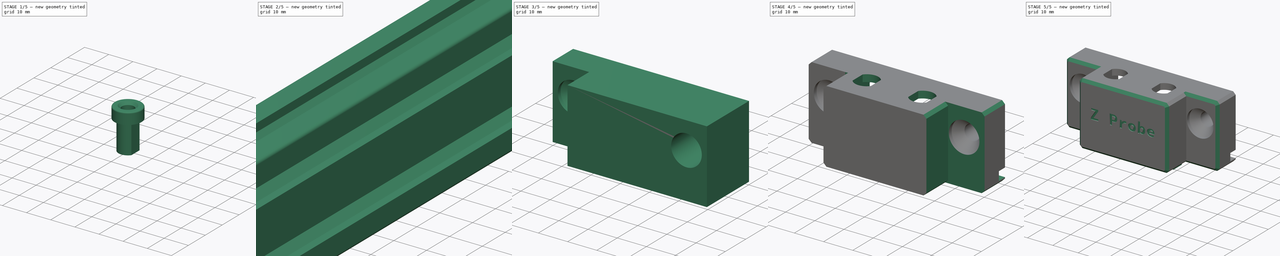
[diagram: build sequence overview — one tinted view per stage of 5, left to right]
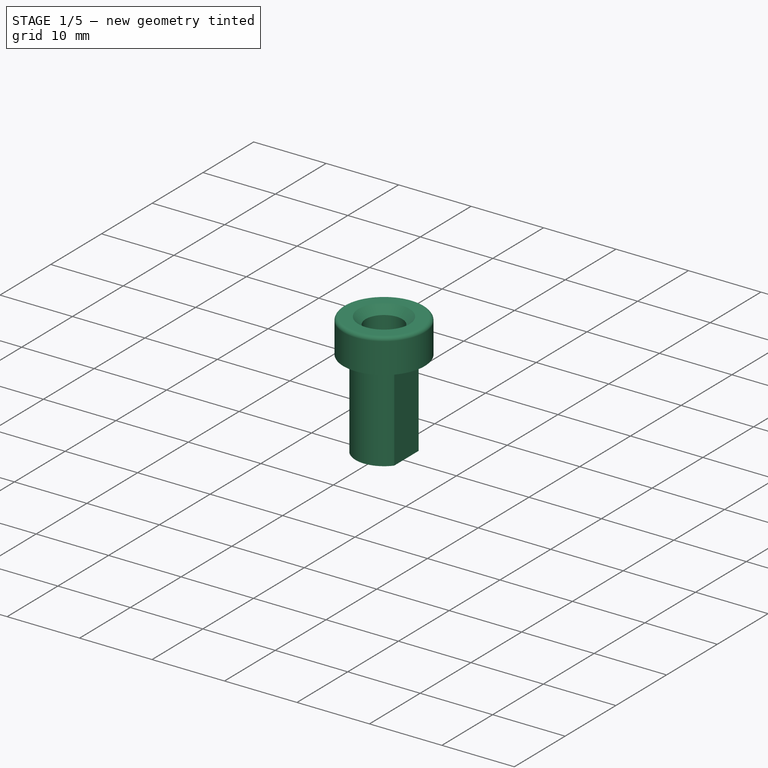
[diagram: stage 1 of 5 — iso view after this stage's code; geometry added in this stage tinted green]
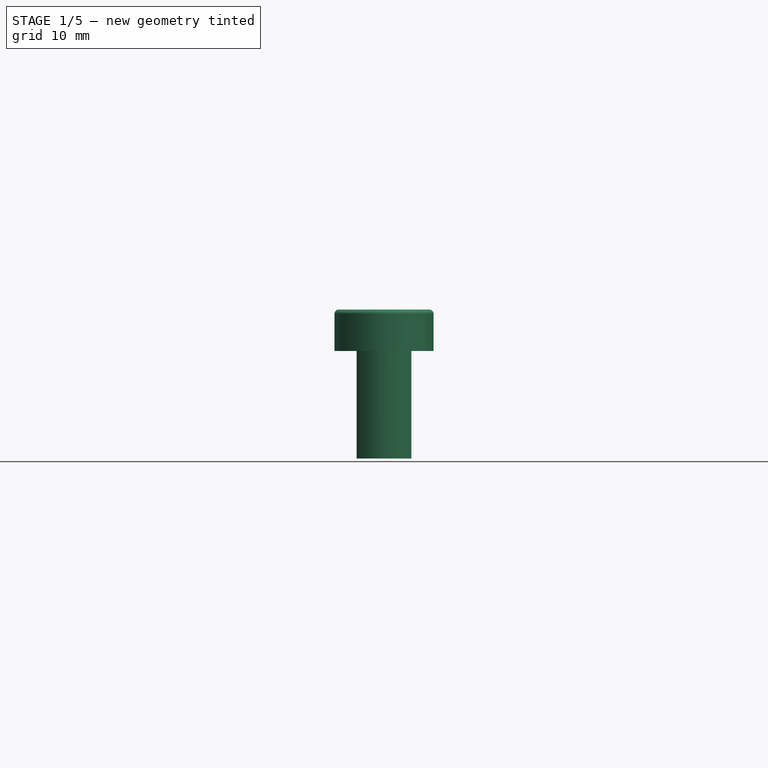
[diagram: stage 1 of 5 — front view after this stage's code; geometry added in this stage tinted green]
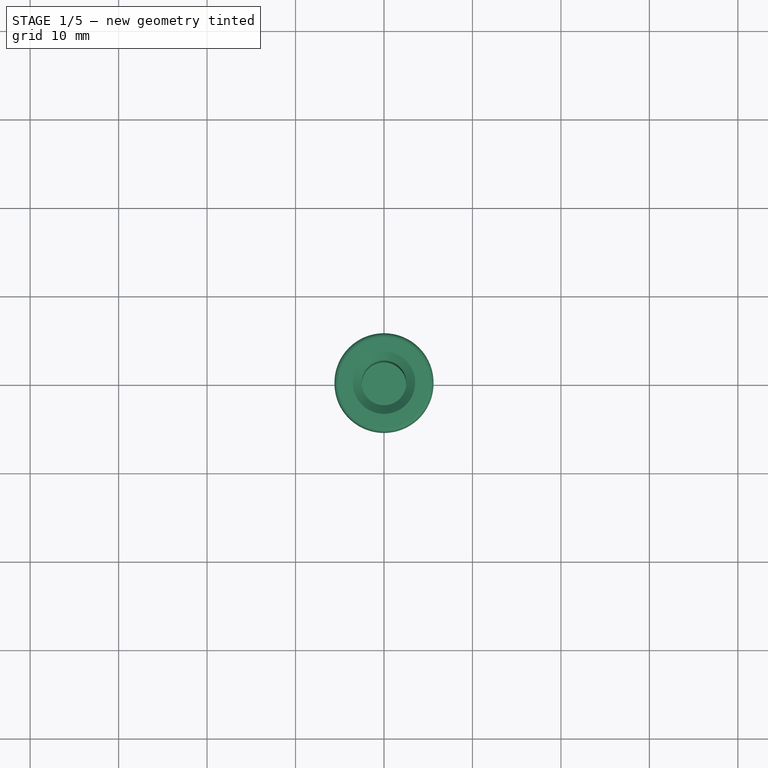
[diagram: stage 1 of 5 — top view after this stage's code; geometry added in this stage tinted green]
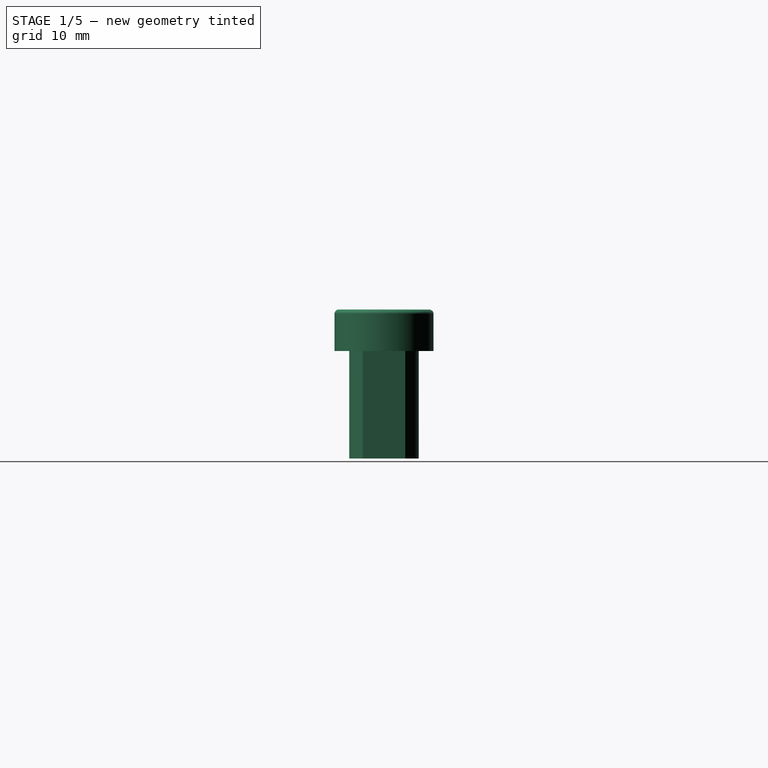
[diagram: stage 1 of 5 — right view after this stage's code; geometry added in this stage tinted green]
FCSTD DOCUMENT  (FreeCAD 0.18R16158 (Git))
Label: z_probe
License: All rights reserved
LicenseURL: http://en.wikipedia.org/wiki/All_rights_reserved
objects: Sketcher::SketchObject×18, PartDesign::Pocket×13, PartDesign::Mirrored×7, PartDesign::Chamfer×6, PartDesign::Body×6, PartDesign::Pad×5, App::Part×5, PartDesign::ShapeBinder×4, PartDesign::FeatureBase×2, PartDesign::Fillet×1, PartDesign::LinearPattern×1, PartDesign::MultiTransform×1, PartDesign::Hole×1, Part::Part2DObjectPython×1
note: 85 computed .brp shape members not serialized (recipe doc carries the construction recipe); baked Part::Feature solids carry a one-line shape summary decoded from their .brp

FEATURE [Sketcher::SketchObject] Sketch003
  MapMode = 5
  Support = -> [XY_Plane003]
  sketch-geometry (1):
    g0: Circle CenterX=0 CenterY=0 CenterZ=0 NormalX=0 NormalY=0 NormalZ=1 AngleXU=0 Radius=5.6
  constraints (2):
    c: Coincident(g0,g-1)
    c: Diameter(g0) = 11.2
FEATURE [PartDesign::Pad] Pad001
  Length = 4.7
  Length2 = 100
  Profile = -> Sketch003
  Refine = true
  Type = 0
FEATURE [Sketcher::SketchObject] Sketch004
  MapMode = 5
  Placement = pos=(0,0,0) rot=(1,0,0;3.14159rad)
  Support = -> [Pad001]
  sketch-geometry (1):
    g0: Circle CenterX=0 CenterY=0 CenterZ=0 NormalX=0 NormalY=0 NormalZ=1 AngleXU=0 Radius=3.925
  constraints (2):
    c: Coincident(g0,g-1)
    c: Diameter(g0) = 7.85
FEATURE [PartDesign::Pad] Pad002
  BaseFeature = -> Pad001
  Length = 12.15
  Length2 = 100
  Profile = -> Sketch004
  Refine = true
  Type = 0
FEATURE [Sketcher::SketchObject] Sketch005
  MapMode = 5
  Placement = pos=(0,0,4.7) rot=(0,0,1;0rad)
  Support = -> [Pad002]
  sketch-geometry (1):
    g0: Circle CenterX=0 CenterY=0 CenterZ=0 NormalX=0 NormalY=0 NormalZ=1 AngleXU=0 Radius=2.525
  constraints (2):
    c: Coincident(g0,g-1)
    c: Diameter(g0) = 5.05
FEATURE [PartDesign::Pocket] Pocket002
  BaseFeature = -> Pad002
  Length = 14
  Length2 = 100
  Profile = -> Sketch005
  Refine = true
  Type = 0
FEATURE [PartDesign::Fillet] Fillet
  Base = -> Pocket002 [Edge3]
  BaseFeature = -> Pocket002
  Radius = 0.5
FEATURE [PartDesign::Chamfer] Chamfer
  Base = -> Fillet [Edge7]
  BaseFeature = -> Fillet
  Size = 1
FEATURE [Sketcher::SketchObject] Sketch006
  ExternalGeometry = -> [Chamfer]
  MapMode = 5
  Placement = pos=(0,0,-12.15) rot=(1,0,0;3.14159rad)
  Support = -> [Chamfer]
  sketch-geometry (2):
    g0: LineSegment StartX=3.1 StartY=2.40741 StartZ=0 EndX=3.1 EndY=-2.40741 EndZ=0
    g1: ArcOfCircle CenterX=0 CenterY=-2e-16 CenterZ=0 NormalX=0 NormalY=0 NormalZ=1 AngleXU=0 Radius=3.925 StartAngle=5.62289 EndAngle=6.94348
  constraints (7):
    c: PointOnObject(g0,g-3)
    c: PointOnObject(g0,g-3)
    c: Vertical(g0)
    c: Coincident(g1,g0)
    c: Coincident(g1,g0)
    c: Equal(g-3,g1)
    c: DistanceX(g1,g0) = 3.1
FEATURE [PartDesign::Pocket] Pocket003
  BaseFeature = -> Chamfer
  Length = 0
  Length2 = 100
  Profile = -> Sketch006
  Refine = true
  Type = 3
  UpToFace = -> Chamfer [Face7]
FEATURE [PartDesign::Mirrored] Mirrored
  BaseFeature = -> Pocket003
  MirrorPlane = -> Sketch006 [V_Axis]
  Originals = -> [Pocket003]
  Refine = true
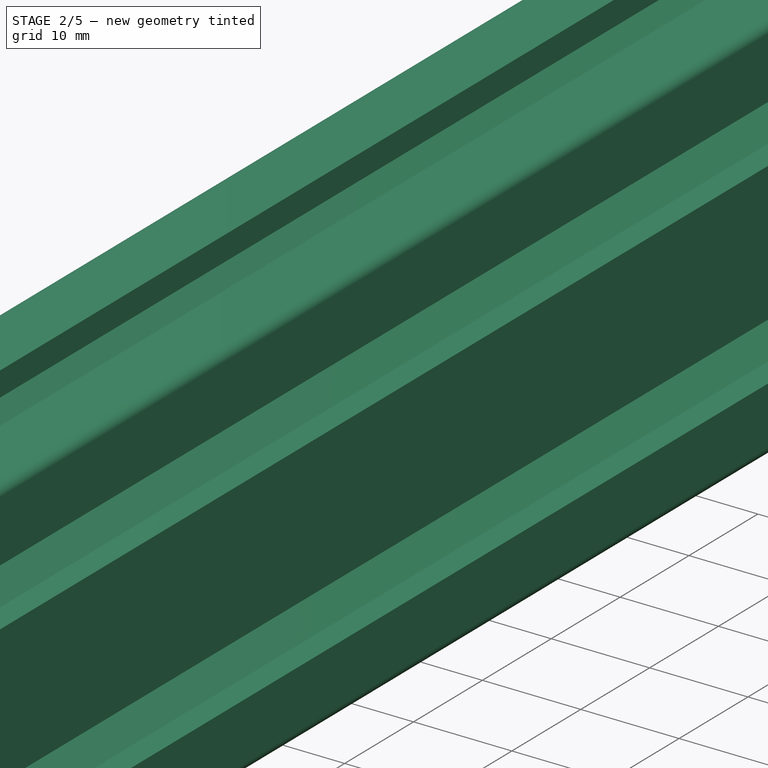
[diagram: stage 2 of 5 — iso view after this stage's code; geometry added in this stage tinted green]
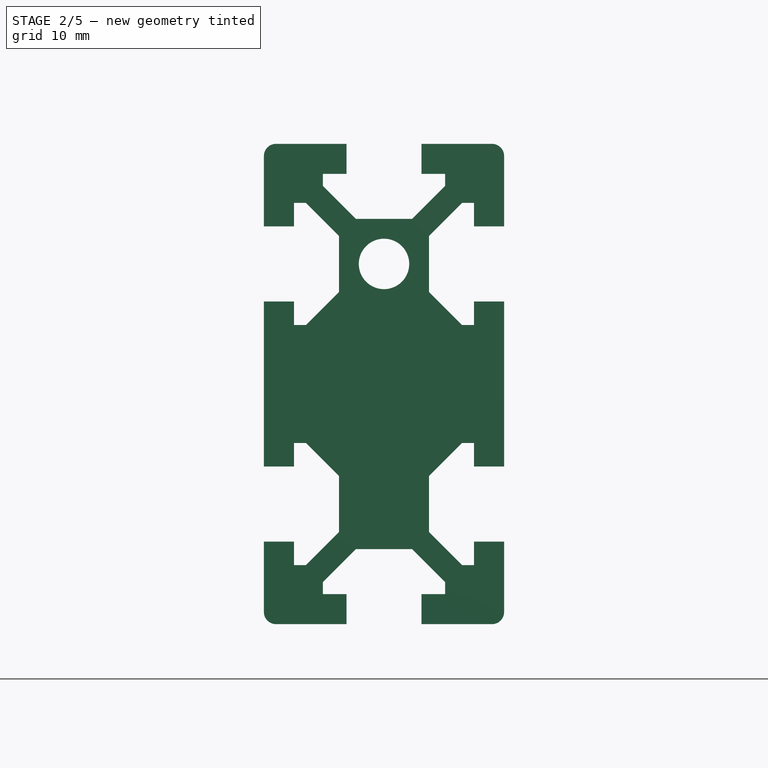
[diagram: stage 2 of 5 — front view after this stage's code; geometry added in this stage tinted green]
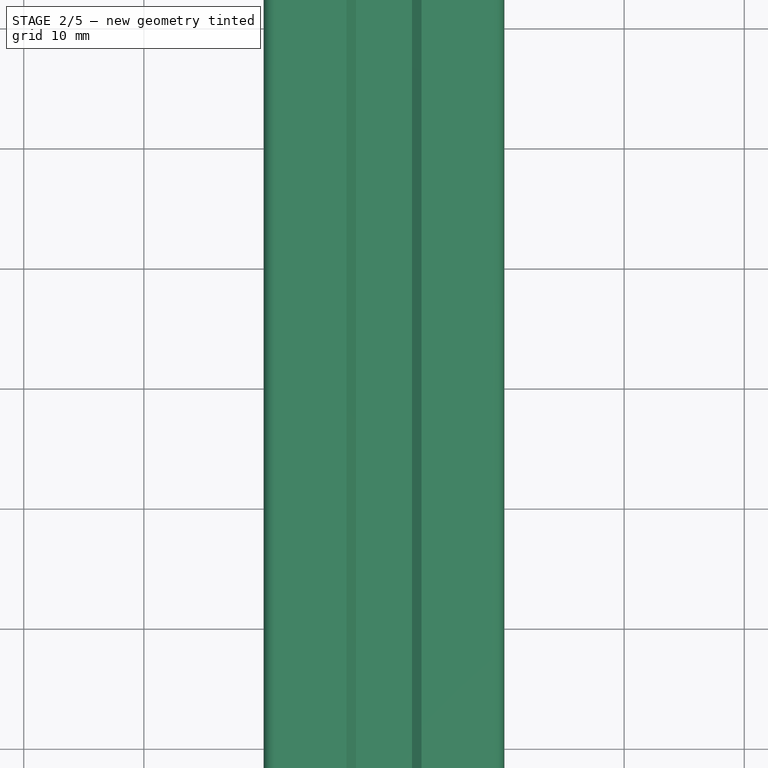
[diagram: stage 2 of 5 — top view after this stage's code; geometry added in this stage tinted green]
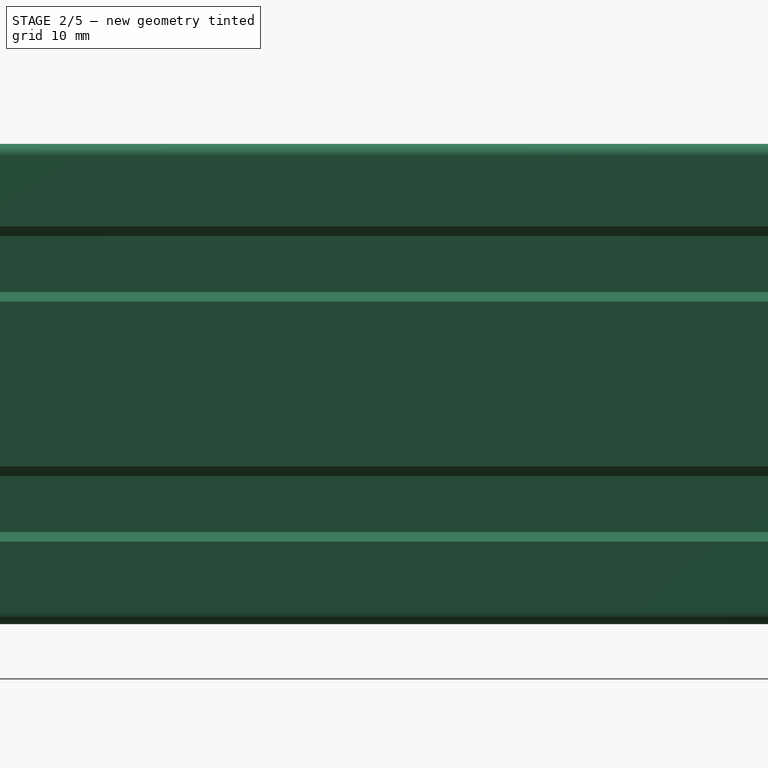
[diagram: stage 2 of 5 — right view after this stage's code; geometry added in this stage tinted green]
FEATURE [PartDesign::Body] Body002  label="red_pin"
  Group = -> [ShapeBinder,Sketch007,Pad003,Sketch008,Pocket004]
  Origin = -> Origin004
  Tip = -> Pocket004
FEATURE [App::Part] Part002  label="red_banana"
  Group = -> [Body001,Body002]
  Origin = -> Origin005
FEATURE [PartDesign::FeatureBase] Clone
  BaseFeature = -> Body001
FEATURE [PartDesign::Body] Body004  label="black_pin"
  Group = -> [Clone001]
  Origin = -> Origin008
  Tip = -> Clone001
FEATURE [App::Part] Part003  label="black_banana"
  Group = -> [Body003,Body004]
  Origin = -> Origin006
  Placement = pos=(19.05,0,0) rot=(0,0,1;0rad)
FEATURE [App::Part] Part001  label="banana connectors"
  Group = -> [Part002,Part003]
  Origin = -> Origin002
  Placement = pos=(-9.525,-21,19.3) rot=(0,0,1;0rad)
FEATURE [Sketcher::SketchObject] Sketch010
  MapMode = 5
  Placement = pos=(0,0,0) rot=(1,0,0;1.5708rad)
  Support = -> [XZ_Plane011]
  sketch-geometry (8):
    g0: LineSegment StartX=-9 StartY=20 StartZ=0 EndX=9 EndY=20 EndZ=0
    g1: LineSegment StartX=10 StartY=19 StartZ=0 EndX=10 EndY=-19 EndZ=0
    g2: LineSegment StartX=9 StartY=-20 StartZ=0 EndX=-9 EndY=-20 EndZ=0
    g3: LineSegment StartX=-10 StartY=-19 StartZ=0 EndX=-10 EndY=19 EndZ=0
    g4: ArcOfCircle CenterX=9 CenterY=19 CenterZ=0 NormalX=0 NormalY=0 NormalZ=1 AngleXU=0 Radius=1 StartAngle=-9e-16 EndAngle=1.5708
    g5: ArcOfCircle CenterX=9 CenterY=-19 CenterZ=0 NormalX=0 NormalY=0 NormalZ=1 AngleXU=0 Radius=1 StartAngle=4.71239 EndAngle=6.28319
    g6: ArcOfCircle CenterX=-9 CenterY=-19 CenterZ=0 NormalX=0 NormalY=0 NormalZ=1 AngleXU=0 Radius=1 StartAngle=3.14159 EndAngle=4.71239
    g7: ArcOfCircle CenterX=-9 CenterY=19 CenterZ=0 NormalX=0 NormalY=0 NormalZ=1 AngleXU=0 Radius=1 StartAngle=1.5708 EndAngle=3.14159
  constraints (18):
    c: Horizontal(g0)
    c: Horizontal(g2)
    c: Vertical(g1)
    c: Vertical(g3)
    c: Tangent(g0,g4) = 1.5708
    c: Tangent(g1,g4) = 1.5708
    c: Tangent(g1,g5) = 1.5708
    c: Tangent(g2,g5) = 1.5708
    c: Tangent(g2,g6) = 1.5708
    c: Tangent(g3,g6) = 1.5708
    c: Tangent(g3,g7) = 1.5708
    c: Tangent(g0,g7) = 1.5708
    c: Equal(g5,g6)
    c: Radius(g4) = 1
    c: DistanceX(g3,g1) = 20
    c: DistanceY(g2,g0) = 40
    c: Symmetric(g4,g7,g-2)
    c: Symmetric(g4,g5,g-1)
FEATURE [PartDesign::Pad] Pad004
  Length = 300
  Length2 = 100
  Midplane = true
  Placement = pos=(0,0,0) rot=(1,0,0;1.5708rad)
  Profile = -> Sketch010
  Refine = true
  Type = 0
FEATURE [Sketcher::SketchObject] Sketch013
  ExternalGeometry = -> [Pad004]
  MapMode = 5
  Placement = pos=(0,-150,3.3e-14) rot=(1,0,0;1.5708rad)
  Support = -> [Pad004]
  sketch-geometry (15):
    g0: LineSegment StartX=-3.125 StartY=20 StartZ=0 EndX=3.125 EndY=20 EndZ=0
    g1: LineSegment StartX=3.125 StartY=20 StartZ=0 EndX=3.125 EndY=17.5 EndZ=0
    g2: LineSegment StartX=-3.125 StartY=17.5 StartZ=0 EndX=-3.125 EndY=20 EndZ=0
    g3: LineSegment StartX=5.08579 StartY=17.5 StartZ=0 EndX=5.08579 EndY=16.5 EndZ=0
    g4: LineSegment StartX=-5.08579 StartY=16.5 StartZ=0 EndX=-5.08579 EndY=17.5 EndZ=0
    g5: LineSegment StartX=-5.08579 StartY=16.5 StartZ=0 EndX=-2.33579 EndY=13.75 EndZ=0
    g6: LineSegment StartX=-2.33579 StartY=13.75 StartZ=0 EndX=2.33579 EndY=13.75 EndZ=0
    g7: LineSegment StartX=2.33579 StartY=13.75 StartZ=0 EndX=5.08579 EndY=16.5 EndZ=0
    g8: LineSegment StartX=3.125 StartY=17.5 StartZ=0 EndX=5.08579 EndY=17.5 EndZ=0
    g9: LineSegment StartX=-3.125 StartY=17.5 StartZ=0 EndX=-5.08579 EndY=17.5 EndZ=0
    g10: LineSegment [constr] StartX=-3.125 StartY=17.5 StartZ=0 EndX=3.125 EndY=17.5 EndZ=0
    g11: LineSegment [constr] StartX=5.08579 StartY=16.5 StartZ=0 EndX=-5.08579 EndY=16.5 EndZ=0
    g12: LineSegment [constr] StartX=-9 StartY=19 StartZ=0 EndX=0 EndY=10 EndZ=0
    g13: LineSegment [constr] StartX=0 StartY=10 StartZ=0 EndX=9 EndY=19 EndZ=0
    g14: LineSegment [constr] StartX=5.08579 StartY=16.5 StartZ=0 EndX=5.79289 EndY=15.7929 EndZ=0
  constraints (41):
    c: Coincident(g0,g1)
    c: Coincident(g2,g0)
    c: Horizontal(g0)
    c: Vertical(g1)
    c: Vertical(g2)
    c: PointOnObject(g0,g-3)
    c: Vertical(g3)
    c: Vertical(g4)
    c: Coincident(g6,g5)
    c: Horizontal(g6)
    c: Coincident(g7,g6)
    c: Coincident(g7,g3)
    c: Coincident(g8,g1)
    c: Coincident(g8,g3)
    c: Coincident(g9,g2)
    c: Coincident(g9,g4)
    c: Horizontal(g8)
    c: Horizontal(g9)
    c: Coincident(g10,g2)
    c: Coincident(g10,g1)
    c: Coincident(g11,g3)
    c: Coincident(g11,g4)
    c: Horizontal(g11)
    c: DistanceX(g0,g0) = 6.25
    c: DistanceY(g1,g1) = 2.5
    c: DistanceY(g4,g4) = 1
    c: Coincident(g5,g4)
    c: DistanceY(g6,g0) = 6.25
    c: Coincident(g12,g-5)
    c: PointOnObject(g12,g-2)
    c: Coincident(g13,g12)
    c: Coincident(g13,g-4)
    c: DistanceY(g12,g-4) = 10
    c: Parallel(g13,g7)
    c: Parallel(g12,g5)
    c: Coincident(g14,g3)
    c: PointOnObject(g14,g13)
    c: Perpendicular(g7,g14)
    c: Distance(g14) = 1
    c: Equal(g8,g9)
    c: Symmetric(g1,g2,g-2)
FEATURE [PartDesign::Pocket] Pocket007
  BaseFeature = -> Pad004
  Length = 5
  Length2 = 100
  Placement = pos=(0,0,0) rot=(1,0,0;1.5708rad)
  Profile = -> Sketch013
  Refine = true
  Type = 1
FEATURE [PartDesign::Mirrored] Mirrored001
  BaseFeature = -> Pocket007
  MirrorPlane = -> XY_Plane011
  Originals = -> [Pocket007]
  Placement = pos=(0,0,0) rot=(1,0,0;1.5708rad)
  Refine = true
FEATURE [Sketcher::SketchObject] Sketch012
  ExternalGeometry = -> [Mirrored001]
  MapMode = 5
  Placement = pos=(0,-150,3.3e-14) rot=(1,0,0;1.5708rad)
  Support = -> [Mirrored001]
  sketch-geometry (16):
    g0: LineSegment [constr] StartX=9 StartY=19 StartZ=0 EndX=0 EndY=10 EndZ=0
    g1: LineSegment StartX=10 StartY=13.125 StartZ=0 EndX=7.5 EndY=13.125 EndZ=0
    g2: LineSegment StartX=7.5 StartY=6.875 StartZ=0 EndX=10 EndY=6.875 EndZ=0
    g3: LineSegment StartX=10 StartY=6.875 StartZ=0 EndX=10 EndY=13.125 EndZ=0
    g4: LineSegment StartX=7.5 StartY=15.0858 StartZ=0 EndX=6.5 EndY=15.0858 EndZ=0
    g5: LineSegment StartX=6.5 StartY=4.91421 StartZ=0 EndX=7.5 EndY=4.91421 EndZ=0
    g6: LineSegment StartX=7.5 StartY=13.125 StartZ=0 EndX=7.5 EndY=15.0858 EndZ=0
    g7: LineSegment StartX=7.5 StartY=6.875 StartZ=0 EndX=7.5 EndY=4.91421 EndZ=0
    g8: LineSegment StartX=6.5 StartY=15.0858 StartZ=0 EndX=3.75 EndY=12.3358 EndZ=0
    g9: LineSegment StartX=3.75 StartY=12.3358 StartZ=0 EndX=3.75 EndY=7.66421 EndZ=0
    g10: LineSegment StartX=3.75 StartY=7.66421 StartZ=0 EndX=6.5 EndY=4.91421 EndZ=0
    g11: LineSegment [constr] StartX=7.5 StartY=6.875 StartZ=0 EndX=7.5 EndY=13.125 EndZ=0
    g12: LineSegment [constr] StartX=10 StartY=10 StartZ=0 EndX=3.75 EndY=10 EndZ=0
    g13: LineSegment [constr] StartX=6.5 StartY=15.0858 StartZ=0 EndX=5.79289 EndY=15.7929 EndZ=0
    g14: LineSegment [constr] StartX=0 StartY=10 StartZ=0 EndX=10 EndY=4.423e-13 EndZ=0
    g15: LineSegment [constr] StartX=3.75 StartY=7.66421 StartZ=0 EndX=3.04289 EndY=6.95711 EndZ=0
  constraints (45):
    c: Coincident(g0,g-4)
    c: PointOnObject(g0,g-2)
    c: Parallel(g-5,g0)
    c: Coincident(g2,g3)
    c: Coincident(g3,g1)
    c: Horizontal(g1)
    c: Horizontal(g2)
    c: Vertical(g3)
    c: PointOnObject(g1,g-3)
    c: Horizontal(g4)
    c: Horizontal(g5)
    c: Coincident(g6,g1)
    c: Coincident(g6,g4)
    c: Coincident(g7,g2)
    c: Coincident(g7,g5)
    c: Coincident(g9,g8)
    c: Vertical(g9)
    c: Coincident(g10,g9)
    c: Coincident(g11,g2)
    c: Coincident(g11,g1)
    c: Vertical(g6)
    c: Vertical(g7)
    c: Symmetric(g1,g2,g12)
    c: Symmetric(g8,g9,g12)
    c: Parallel(g8,g0)
    c: DistanceY(g3,g3) = 6.25
    c: DistanceX(g9,g2) = 6.25
    c: DistanceX(g4,g4) = 1
    c: Symmetric(g2,g1,g12)
    c: Coincident(g8,g4)
    c: Coincident(g10,g5)
    c: Equal(g4,g5)
    c: Equal(g6,g7)
    c: DistanceX(g1,g1) = 2.5
    c: Coincident(g13,g4)
    c: PointOnObject(g13,g0)
    c: Perpendicular(g13,g8)
    c: Distance(g13) = 1
    c: Coincident(g14,g0)
    c: PointOnObject(g14,g-3)
    c: Perpendicular(g0,g14)
    c: Coincident(g15,g9)
    c: PointOnObject(g15,g14)
    c: Perpendicular(g10,g15)
    c: Distance(g15) = 1
FEATURE [PartDesign::LinearPattern] LinearPattern002
  Direction = -> Sketch012 [V_Axis]
  Length = 20
  Occurrences = 2
  Placement = pos=(0,0,0) rot=(1,0,0;1.5708rad)
  Refine = true
  Reversed = true
FEATURE [PartDesign::Pocket] Pocket005
  BaseFeature = -> Mirrored001
  Length = 5
  Length2 = 100
  Placement = pos=(0,0,0) rot=(1,0,0;1.5708rad)
  Profile = -> Sketch012
  Refine = true
  Type = 1
FEATURE [PartDesign::Mirrored] Mirrored002
  MirrorPlane = -> Sketch012 [V_Axis]
  Placement = pos=(0,0,0) rot=(1,0,0;1.5708rad)
  Refine = true
FEATURE [PartDesign::MultiTransform] MultiTransform
  BaseFeature = -> Pocket005
  Originals = -> [Pocket005]
  Placement = pos=(0,0,0) rot=(1,0,0;1.5708rad)
  Refine = true
  Transformations = -> [LinearPattern002,Mirrored002]
FEATURE [Sketcher::SketchObject] Sketch009
  ExternalGeometry = -> [MultiTransform]
  MapMode = 5
  Placement = pos=(0,-150,3.3e-14) rot=(1,0,0;1.5708rad)
  Support = -> [MultiTransform]
  sketch-geometry (3):
    g0: LineSegment [constr] StartX=-9 StartY=19 StartZ=0 EndX=0 EndY=10 EndZ=0
    g1: LineSegment [constr] StartX=0 StartY=10 StartZ=0 EndX=9 EndY=19 EndZ=0
    g2: Circle CenterX=0 CenterY=10 CenterZ=0 NormalX=0 NormalY=0 NormalZ=1 AngleXU=0 Radius=2.1
  constraints (7):
    c: Coincident(g0,g-4)
    c: Coincident(g1,g0)
    c: Coincident(g1,g-3)
    c: PointOnObject(g0,g-2)
    c: Perpendicular(g0,g1)
    c: Coincident(g2,g0)
    c: Diameter(g2) = 4.2
FEATURE [PartDesign::Pocket] Pocket006
  BaseFeature = -> MultiTransform
  Length = 5
  Length2 = 100
  Placement = pos=(0,0,0) rot=(1,0,0;1.5708rad)
  Profile = -> Sketch009
  Refine = true
  Type = 1
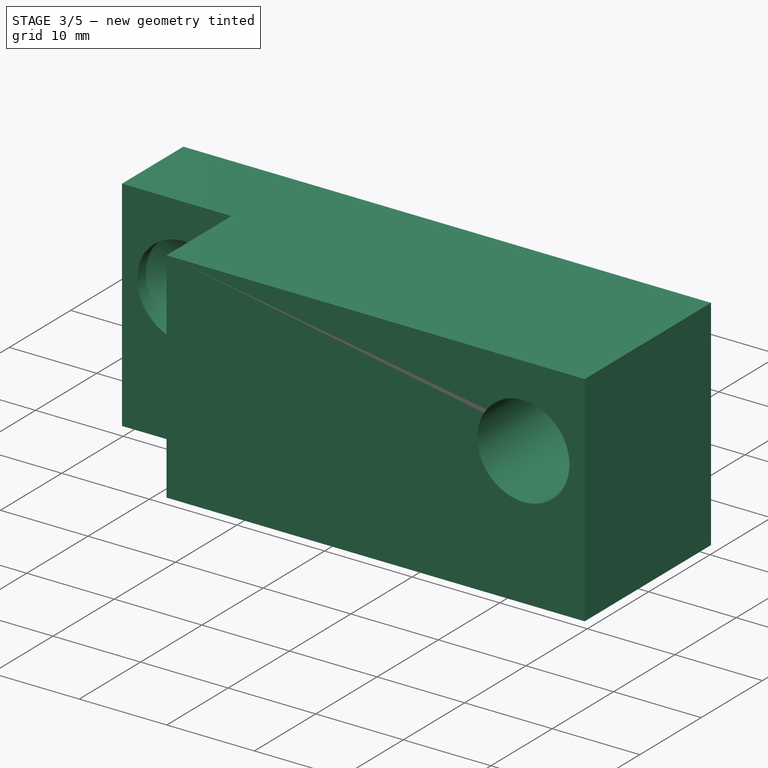
[diagram: stage 3 of 5 — iso view after this stage's code; geometry added in this stage tinted green]
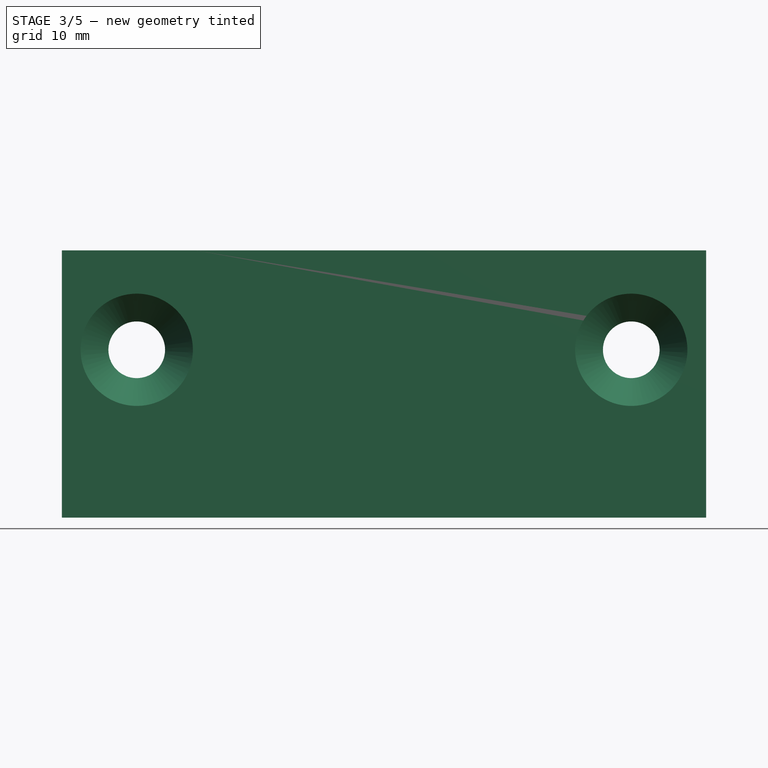
[diagram: stage 3 of 5 — front view after this stage's code; geometry added in this stage tinted green]
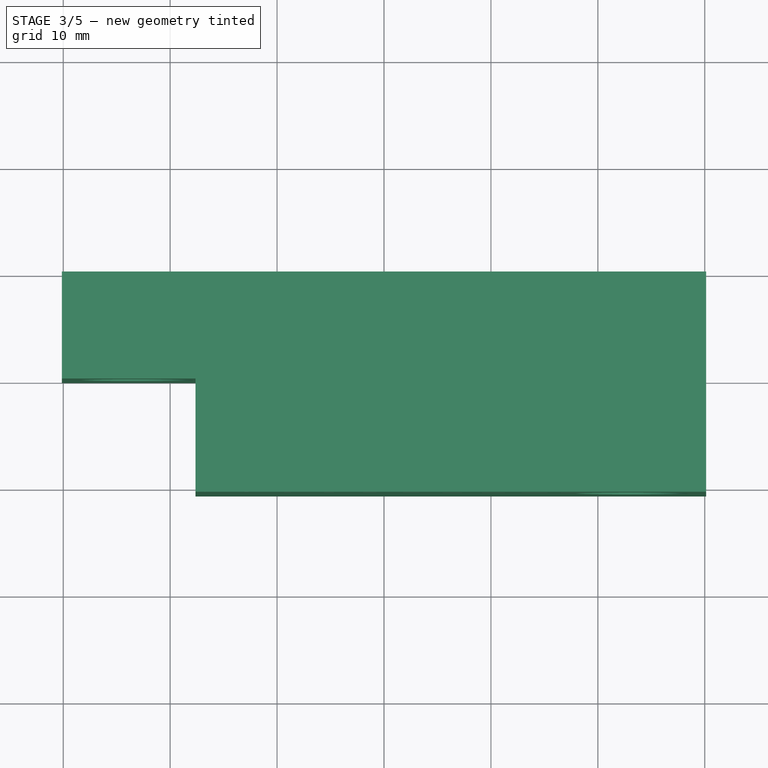
[diagram: stage 3 of 5 — top view after this stage's code; geometry added in this stage tinted green]
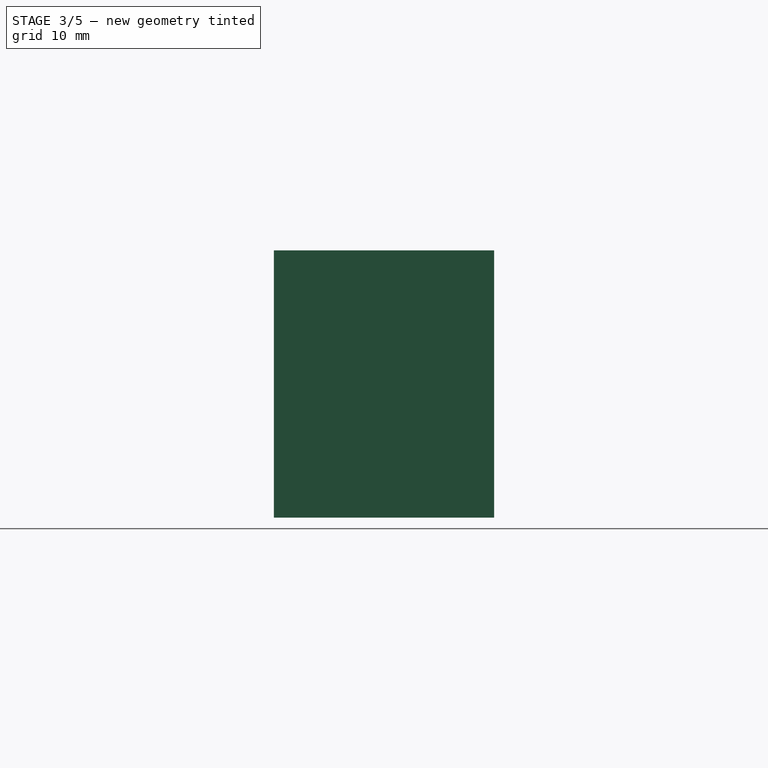
[diagram: stage 3 of 5 — right view after this stage's code; geometry added in this stage tinted green]
FEATURE [PartDesign::Mirrored] Mirrored003
  BaseFeature = -> Pocket006
  MirrorPlane = -> Sketch009 [H_Axis]
  Originals = -> [Pocket006]
  Placement = pos=(0,0,0) rot=(1,0,0;1.5708rad)
  Refine = true
FEATURE [Sketcher::SketchObject] Sketch011
  ExternalGeometry = -> [Mirrored003]
  MapMode = 5
  Placement = pos=(0,-150,3.3e-14) rot=(1,0,0;1.5708rad)
  Support = -> [Mirrored003]
  sketch-geometry (11):
    g0: LineSegment StartX=-2.33579 StartY=6.25 StartZ=0 EndX=-6.25 EndY=2.33579 EndZ=0
    g1: LineSegment StartX=-6.25 StartY=2.33579 StartZ=0 EndX=-6.25 EndY=-2.33579 EndZ=0
    g2: LineSegment StartX=-6.25 StartY=-2.33579 StartZ=0 EndX=-2.33579 EndY=-6.25 EndZ=0
    g3: LineSegment StartX=-2.33579 StartY=-6.25 StartZ=0 EndX=2.33579 EndY=-6.25 EndZ=0
    g4: LineSegment StartX=2.33579 StartY=-6.25 StartZ=0 EndX=6.25 EndY=-2.33579 EndZ=0
    g5: LineSegment StartX=6.25 StartY=-2.33579 StartZ=0 EndX=6.25 EndY=2.33579 EndZ=0
    g6: LineSegment StartX=6.25 StartY=2.33579 StartZ=0 EndX=2.33579 EndY=6.25 EndZ=0
    g7: LineSegment StartX=2.33579 StartY=6.25 StartZ=0 EndX=-2.33579 EndY=6.25 EndZ=0
    g8: LineSegment [constr] StartX=-2.33579 StartY=6.25 StartZ=0 EndX=2.33579 EndY=-6.25 EndZ=0
    g9: LineSegment [constr] StartX=-2.33579 StartY=-6.25 StartZ=0 EndX=2.33579 EndY=6.25 EndZ=0
    g10: LineSegment [constr] StartX=-2.33579 StartY=6.25 StartZ=0 EndX=-3.75 EndY=7.66421 EndZ=0
  constraints (31):
    c: Coincident(g1,g0)
    c: Vertical(g1)
    c: Coincident(g2,g1)
    c: Coincident(g3,g2)
    c: Horizontal(g3)
    c: Coincident(g4,g3)
    c: Coincident(g5,g4)
    c: Coincident(g6,g5)
    c: Coincident(g7,g6)
    c: Coincident(g7,g0)
    c: Horizontal(g7)
    c: Vertical(g5)
    c: Parallel(g6,g-4)
    c: Parallel(g0,g-3)
    c: Parallel(g4,g-5)
    c: Equal(g-7,g7)
    c: Equal(g7,g5)
    c: Equal(g5,g3)
    c: Equal(g3,g1)
    c: Equal(g0,g6)
    c: Equal(g6,g4)
    c: Coincident(g8,g0)
    c: Coincident(g8,g3)
    c: Coincident(g9,g2)
    c: Coincident(g9,g6)
    c: PointOnObject(g-1,g9)
    c: PointOnObject(g-1,g8)
    c: Coincident(g10,g0)
    c: PointOnObject(g10,g-3)
    c: Perpendicular(g10,g0)
    c: Distance(g10) = 2
FEATURE [PartDesign::Pocket] Pocket008
  BaseFeature = -> Mirrored003
  Length = 5
  Length2 = 100
  Placement = pos=(0,0,0) rot=(1,0,0;1.5708rad)
  Profile = -> Sketch011
  Refine = true
  Type = 1
FEATURE [PartDesign::Body] Body006  label="2040"
  Group = -> [Sketch010,Pad004,Sketch013,Pocket007,Mirrored001,Sketch012,Pocket005,MultiTransform,LinearPattern002,Mirrored002,Sketch009,Pocket006,Mirrored003,Sketch011,Pocket008]
  Origin = -> Origin011
  Placement = pos=(0,0,0) rot=(0,0,1;1.5708rad)
  Tip = -> Pocket008
FEATURE [App::Part] Part  label="aluminum"
  Group = -> [Body006]
  Origin = -> Origin
FEATURE [PartDesign::ShapeBinder] ShapeBinder001
  Placement = pos=(0,0,0) rot=(0,0,1;1.5708rad)
  Support = -> [Pocket008]
  TraceSupport = true
FEATURE [PartDesign::ShapeBinder] ShapeBinder002
  Placement = pos=(9.525,-21,19.3) rot=(0,0,1;0rad)
  Support = -> [Clone,Mirrored]
  TraceSupport = true
FEATURE [PartDesign::ShapeBinder] ShapeBinder003
  Placement = pos=(-9.525,-21,19.3) rot=(0,0,1;0rad)
  Support = -> [Mirrored]
  TraceSupport = true
FEATURE [Sketcher::SketchObject] Sketch
  ExternalGeometry = -> [ShapeBinder002,ShapeBinder003,ShapeBinder001]
  MapMode = 5
  Placement = pos=(-9.525,-21,19.3) rot=(1,0,0;3.14159rad)
  Support = -> [ShapeBinder003]
  sketch-geometry (7):
    g0: LineSegment StartX=-20.6 StartY=-11 StartZ=0 EndX=39.65 EndY=-11 EndZ=0
    g1: LineSegment StartX=39.65 StartY=-11 StartZ=0 EndX=39.65 EndY=9.6 EndZ=0
    g2: LineSegment StartX=39.65 StartY=9.6 StartZ=0 EndX=-20.6 EndY=9.6 EndZ=0
    g3: LineSegment StartX=-20.6 StartY=9.6 StartZ=0 EndX=-20.6 EndY=-11 EndZ=0
    g4: LineSegment [constr] StartX=-20.6 StartY=5.6 StartZ=0 EndX=39.65 EndY=5.6 EndZ=0
    g5: LineSegment [constr] StartX=24.65 StartY=-11 StartZ=0 EndX=24.65 EndY=9.6 EndZ=0
    g6: LineSegment [constr] StartX=9.525 StartY=-11 StartZ=0 EndX=9.525 EndY=9.6 EndZ=0
  constraints (22):
    c: Coincident(g0,g1)
    c: Coincident(g1,g2)
    c: Coincident(g2,g3)
    c: Coincident(g3,g0)
    c: Horizontal(g2)
    c: Vertical(g1)
    c: Vertical(g3)
    c: PointOnObject(g0,g-5)
    c: PointOnObject(g4,g3)
    c: PointOnObject(g4,g1)
    c: Horizontal(g4)
    c: PointOnObject(g5,g0)
    c: PointOnObject(g5,g2)
    c: Vertical(g5)
    c: Tangent(g-3,g4)
    c: Tangent(g-3,g5)
    c: DistanceY(g4,g1) = 4
    c: DistanceX(g5,g1) = 15
    c: PointOnObject(g6,g0)
    c: PointOnObject(g6,g2)
    c: Symmetric(g-3,g-1,g6)
    c: Symmetric(g0,g0,g6)
FEATURE [PartDesign::Pad] Pad
  Length = 25
  Length2 = 100
  Placement = pos=(-9.525,-21,19.3) rot=(0,0,1;0rad)
  Profile = -> Sketch
  Refine = true
  Type = 0
FEATURE [Sketcher::SketchObject] Sketch014
  ExternalGeometry = -> [Pad,ShapeBinder001]
  MapMode = 5
  Placement = pos=(-9.525,-30.6,19.3) rot=(1,0,0;1.5708rad)
  Support = -> [Pad]
  sketch-geometry (3):
    g0: LineSegment [constr] StartX=9.525 StartY=0 StartZ=0 EndX=9.525 EndY=-25 EndZ=0
    g1: Circle CenterX=32.65 CenterY=-9.3 CenterZ=0 NormalX=0 NormalY=0 NormalZ=1 AngleXU=0 Radius=5.25
    g2: LineSegment [constr] StartX=32.65 StartY=-6.175 StartZ=0 EndX=32.65 EndY=-12.425 EndZ=0
  constraints (9):
    c: PointOnObject(g0,g-1)
    c: PointOnObject(g0,g-3)
    c: Symmetric(g-3,g-3,g0)
    c: Diameter(g1) = 10.5
    c: PointOnObject(g2,g-4)
    c: PointOnObject(g2,g-5)
    c: Vertical(g2)
    c: Symmetric(g2,g2,g1)
    c: DistanceX(g1,g-3) = 7
FEATURE [PartDesign::Pocket] Pocket
  BaseFeature = -> Pad
  Length = 12
  Length2 = 100
  Placement = pos=(-9.525,-21,19.3) rot=(0,0,1;0rad)
  Profile = -> Sketch014
  Refine = true
  Type = 0
FEATURE [PartDesign::Mirrored] Mirrored004
  BaseFeature = -> Pocket
  MirrorPlane = -> Sketch014 [Axis0]
  Originals = -> [Pocket]
  Placement = pos=(-9.525,-21,19.3) rot=(0,0,1;0rad)
  Refine = true
FEATURE [Sketcher::SketchObject] Sketch015
  ExternalGeometry = -> [Mirrored004]
  MapMode = 5
  Placement = pos=(-9.525,-18.6,19.3) rot=(1,0,0;1.5708rad)
  Support = -> [Mirrored004]
  sketch-geometry (2):
    g0: Circle CenterX=32.65 CenterY=-9.3 CenterZ=0 NormalX=0 NormalY=0 NormalZ=1 AngleXU=0 Radius=2.65
    g1: Circle CenterX=-13.6 CenterY=-9.3 CenterZ=0 NormalX=0 NormalY=0 NormalZ=1 AngleXU=0 Radius=2.65
  constraints (4):
    c: Coincident(g0,g-3)
    c: Coincident(g1,g-4)
    c: Equal(g1,g0)
    c: Diameter(g0) = 5.3
FEATURE [PartDesign::Hole] Hole
  BaseFeature = -> Mirrored004
  Depth = 25
  DepthType = 1
  Diameter = 5.3
  DrillPoint = 1
  DrillPointAngle = 118
  HoleCutCountersinkAngle = 90
  HoleCutDepth = 0
  HoleCutDiameter = 10.5
  HoleCutType = 2
  ModelActualThread = false
  Placement = pos=(-9.525,-21,19.3) rot=(0,0,1;0rad)
  Profile = -> Sketch015
  Refine = true
  Tapered = false
  TaperedAngle = 90
  ThreadAngle = 0
  ThreadClass = 0
  ThreadCutOffInner = 0
  ThreadCutOffOuter = 0
  ThreadDirection = 0
  ThreadFit = 0
  ThreadPitch = 0
  ThreadSize = 0
  ThreadType = 0
  Threaded = false
FEATURE [Sketcher::SketchObject] Sketch016
  ExternalGeometry = -> [ShapeBinder003,ShapeBinder002,Hole]
  MapMode = 5
  Placement = pos=(-9.525,-21,19.3) rot=(0,0,1;0rad)
  Support = -> [Hole]
  sketch-geometry (6):
    g0: LineSegment StartX=-20.6 StartY=1 StartZ=0 EndX=-8.1 EndY=1 EndZ=0
    g1: LineSegment StartX=-8.1 StartY=1 StartZ=0 EndX=-8.1 EndY=-9.6 EndZ=0
    g2: LineSegment StartX=-8.1 StartY=-9.6 StartZ=0 EndX=-20.6 EndY=-9.6 EndZ=0
    g3: LineSegment StartX=-20.6 StartY=-9.6 StartZ=0 EndX=-20.6 EndY=1 EndZ=0
    g4: LineSegment [constr] StartX=-5.6 StartY=-9.6 StartZ=0 EndX=-5.6 EndY=0 EndZ=0
    g5: LineSegment [constr] StartX=9.525 StartY=-9.6 StartZ=0 EndX=9.525 EndY=0 EndZ=0
  constraints (18):
    c: Coincident(g0,g1)
    c: Coincident(g1,g2)
    c: Coincident(g2,g3)
    c: Coincident(g3,g0)
    c: Horizontal(g0)
    c: Horizontal(g2)
    c: Vertical(g1)
    c: Vertical(g3)
    c: Coincident(g2,g-6)
    c: PointOnObject(g4,g-7)
    c: PointOnObject(g4,g-1)
    c: Vertical(g4)
    c: PointOnObject(g4,g-3)
    c: DistanceX(g0,g4) = 2.5
    c: DistanceY(g0,g-6) = 10
    c: PointOnObject(g5,g-7)
    c: Symmetric(g-4,g-1,g5)
    c: Vertical(g5)
FEATURE [PartDesign::Pocket] Pocket009
  BaseFeature = -> Hole
  Length = 5
  Length2 = 100
  Placement = pos=(-9.525,-21,19.3) rot=(0,0,1;0rad)
  Profile = -> Sketch016
  Refine = true
  Type = 1
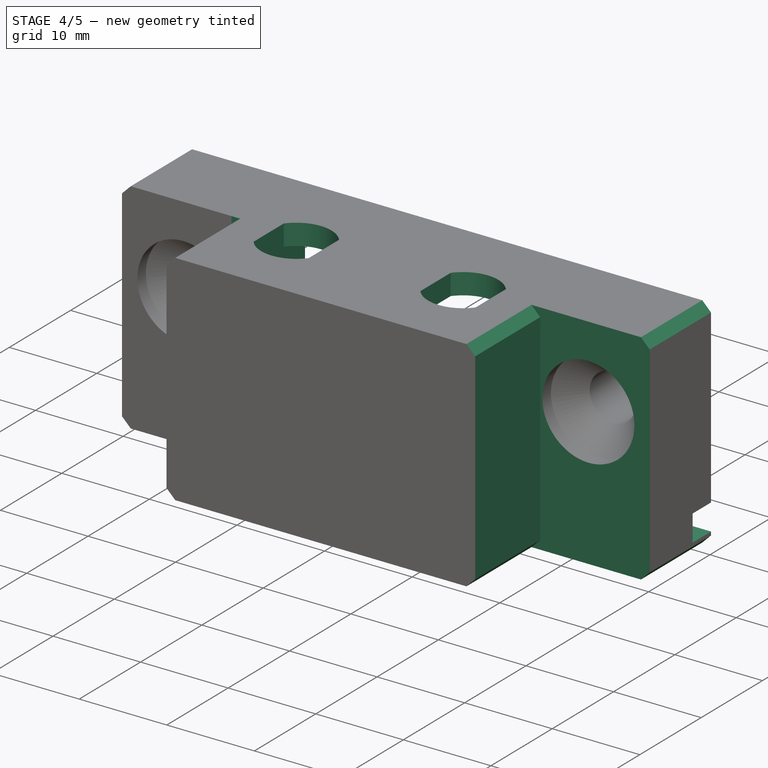
[diagram: stage 4 of 5 — iso view after this stage's code; geometry added in this stage tinted green]
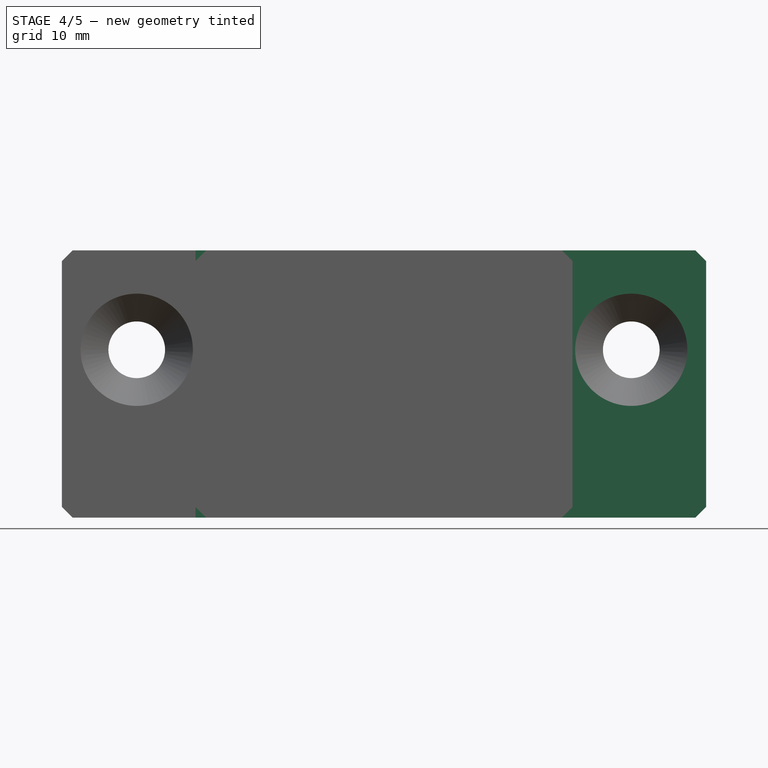
[diagram: stage 4 of 5 — front view after this stage's code; geometry added in this stage tinted green]
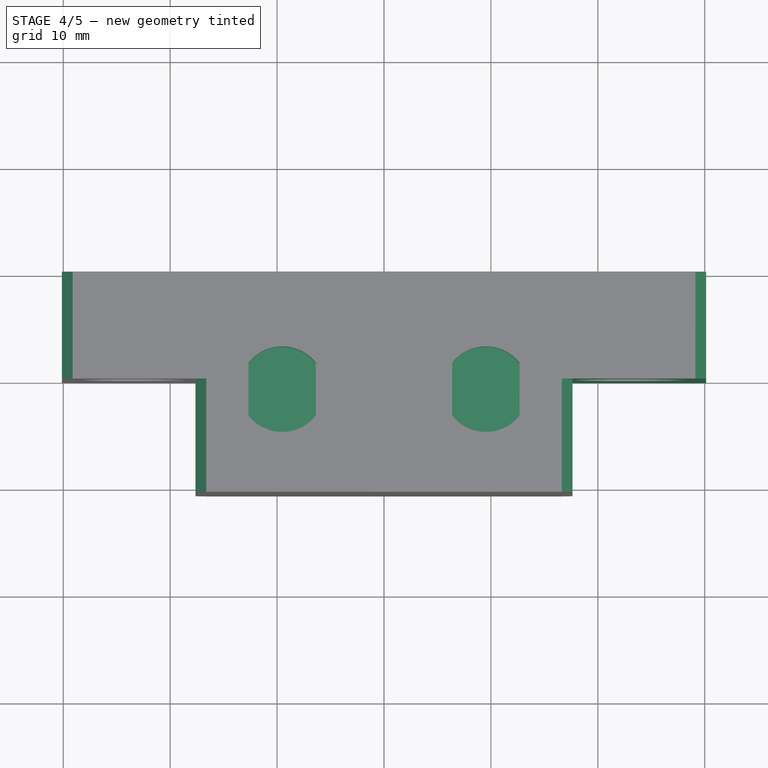
[diagram: stage 4 of 5 — top view after this stage's code; geometry added in this stage tinted green]
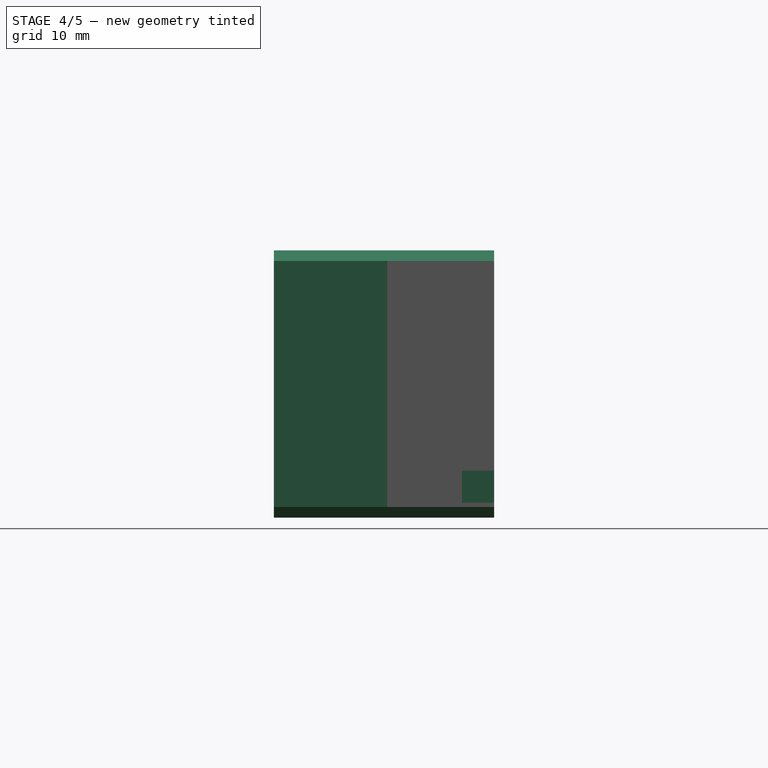
[diagram: stage 4 of 5 — right view after this stage's code; geometry added in this stage tinted green]
FEATURE [PartDesign::Mirrored] Mirrored005
  BaseFeature = -> Pocket009
  MirrorPlane = -> Sketch016 [Axis1]
  Originals = -> [Pocket009]
  Placement = pos=(-9.525,-21,19.3) rot=(0,0,1;0rad)
  Refine = true
FEATURE [Sketcher::SketchObject] Sketch017
  ExternalGeometry = -> [Mirrored005]
  MapMode = 5
  Placement = pos=(-9.525,-10,19.3) rot=(0,0.707107,0.707107;3.14159rad)
  Support = -> [Mirrored005]
  sketch-geometry (4):
    g0: LineSegment StartX=-25.75 StartY=-2.4 StartZ=0 EndX=6.7 EndY=-2.4 EndZ=0
    g1: LineSegment StartX=6.7 StartY=-2.4 StartZ=0 EndX=6.7 EndY=-23.6 EndZ=0
    g2: LineSegment StartX=6.7 StartY=-23.6 StartZ=0 EndX=-25.75 EndY=-23.6 EndZ=0
    g3: LineSegment StartX=-25.75 StartY=-23.6 StartZ=0 EndX=-25.75 EndY=-2.4 EndZ=0
  constraints (12):
    c: Coincident(g0,g1)
    c: Coincident(g1,g2)
    c: Coincident(g2,g3)
    c: Coincident(g3,g0)
    c: Horizontal(g0)
    c: Horizontal(g2)
    c: Vertical(g1)
    c: Vertical(g3)
    c: DistanceX(g0,g-4) = 1.4
    c: DistanceX(g-3,g0) = 1.4
    c: DistanceY(g0,g-4) = 2.4
    c: DistanceY(g-4,g1) = 1.4
FEATURE [PartDesign::Pocket] Pocket010
  BaseFeature = -> Mirrored005
  Length = 0
  Length2 = 100
  Offset = -1.2
  Placement = pos=(-9.525,-21,19.3) rot=(0,0,1;0rad)
  Profile = -> Sketch017
  Refine = true
  Type = 3
  UpToFace = -> Mirrored005 [Face10]
FEATURE [Sketcher::SketchObject] Sketch018
  ExternalGeometry = -> [Pocket010]
  MapMode = 5
  Placement = pos=(-9.525,-10,19.3) rot=(0,0.707107,0.707107;3.14159rad)
  Support = -> [Pocket010]
  sketch-geometry (4):
    g0: LineSegment StartX=-25.75 StartY=-23.6 StartZ=0 EndX=-39.65 EndY=-23.6 EndZ=0
    g1: LineSegment StartX=-39.65 StartY=-23.6 StartZ=0 EndX=-39.65 EndY=-20.6 EndZ=0
    g2: LineSegment StartX=-39.65 StartY=-20.6 StartZ=0 EndX=-25.75 EndY=-20.6 EndZ=0
    g3: LineSegment StartX=-25.75 StartY=-20.6 StartZ=0 EndX=-25.75 EndY=-23.6 EndZ=0
  constraints (11):
    c: Coincident(g0,g1)
    c: Coincident(g1,g2)
    c: Coincident(g2,g3)
    c: Coincident(g3,g0)
    c: Horizontal(g0)
    c: Horizontal(g2)
    c: Vertical(g1)
    c: Vertical(g3)
    c: PointOnObject(g0,g-4)
    c: Coincident(g0,g-3)
    c: DistanceY(g1,g1) = 3
FEATURE [PartDesign::Pocket] Pocket011
  BaseFeature = -> Pocket010
  Length = 3
  Length2 = 100
  Placement = pos=(-9.525,-21,19.3) rot=(0,0,1;0rad)
  Profile = -> Sketch018
  Refine = true
  Type = 0
FEATURE [Sketcher::SketchObject] Sketch019
  ExternalGeometry = -> [ShapeBinder003,ShapeBinder002,Pocket011]
  MapMode = 5
  Placement = pos=(-9.525,-21,19.3) rot=(0,0,1;0rad)
  Support = -> [Pocket011]
  sketch-geometry (5):
    g0: LineSegment [constr] StartX=9.525 StartY=0 StartZ=0 EndX=9.525 EndY=-9.6 EndZ=0
    g1: ArcOfCircle CenterX=0 CenterY=0 CenterZ=0 NormalX=0 NormalY=0 NormalZ=1 AngleXU=0 Radius=4 StartAngle=0.664054 EndAngle=2.47754
    g2: ArcOfCircle CenterX=0 CenterY=0 CenterZ=0 NormalX=0 NormalY=0 NormalZ=1 AngleXU=0 Radius=4 StartAngle=3.80565 EndAngle=5.61913
    g3: LineSegment StartX=3.15 StartY=2.46526 StartZ=0 EndX=3.15 EndY=-2.46526 EndZ=0
    g4: LineSegment StartX=-3.15 StartY=2.46526 StartZ=0 EndX=-3.15 EndY=-2.46526 EndZ=0
  constraints (15):
    c: PointOnObject(g0,g-7)
    c: Vertical(g0)
    c: Symmetric(g-6,g-1,g0)
    c: Coincident(g1,g-1)
    c: Coincident(g2,g1)
    c: Coincident(g3,g2)
    c: Coincident(g4,g1)
    c: Coincident(g4,g2)
    c: Vertical(g4)
    c: Coincident(g3,g1)
    c: Vertical(g3)
    c: Diameter(g1) = 8
    c: Equal(g1,g2)
    c: Equal(g3,g4)
    c: DistanceX(g1,g1) = 6.3
FEATURE [PartDesign::Pocket] Pocket012
  BaseFeature = -> Pocket011
  Length = 5
  Length2 = 100
  Placement = pos=(-9.525,-21,19.3) rot=(0,0,1;0rad)
  Profile = -> Sketch019
  Refine = true
  Type = 0
FEATURE [PartDesign::Mirrored] Mirrored006
  BaseFeature = -> Pocket012
  MirrorPlane = -> Sketch019 [Axis0]
  Originals = -> [Pocket012]
  Placement = pos=(-9.525,-21,19.3) rot=(0,0,1;0rad)
  Refine = true
FEATURE [PartDesign::Chamfer] Chamfer001
  Base = -> Mirrored006 [Edge29,Edge17,Edge58,Edge14]
  BaseFeature = -> Mirrored006
  Placement = pos=(-9.525,-21,19.3) rot=(0,0,1;0rad)
  Size = 1
FEATURE [PartDesign::Chamfer] Chamfer002
  Base = -> Chamfer001 [Edge19,Edge48,Edge51,Edge22]
  BaseFeature = -> Chamfer001
  Placement = pos=(-9.525,-21,19.3) rot=(0,0,1;0rad)
  Size = 1
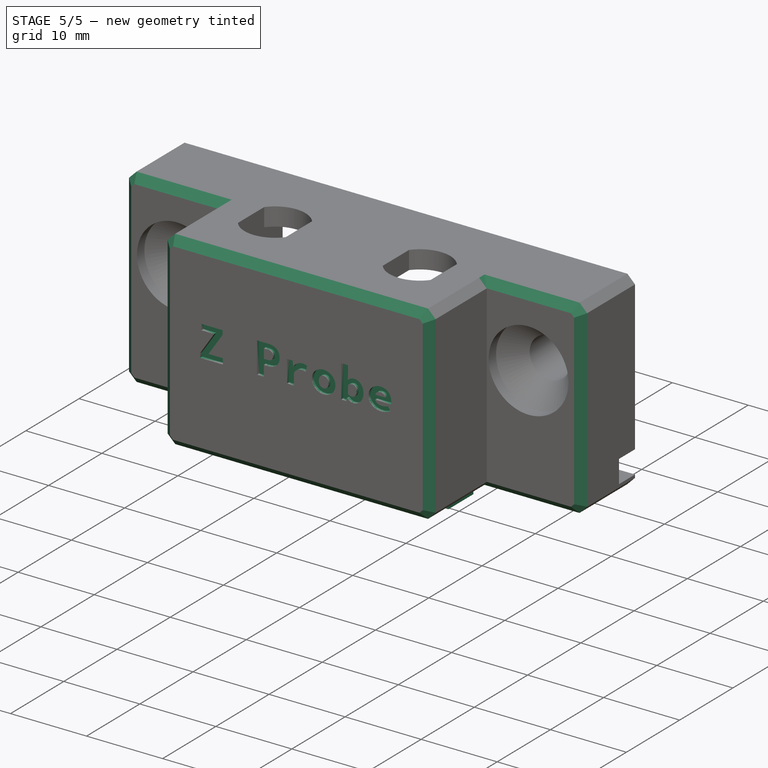
[diagram: stage 5 of 5 — iso view after this stage's code; geometry added in this stage tinted green]
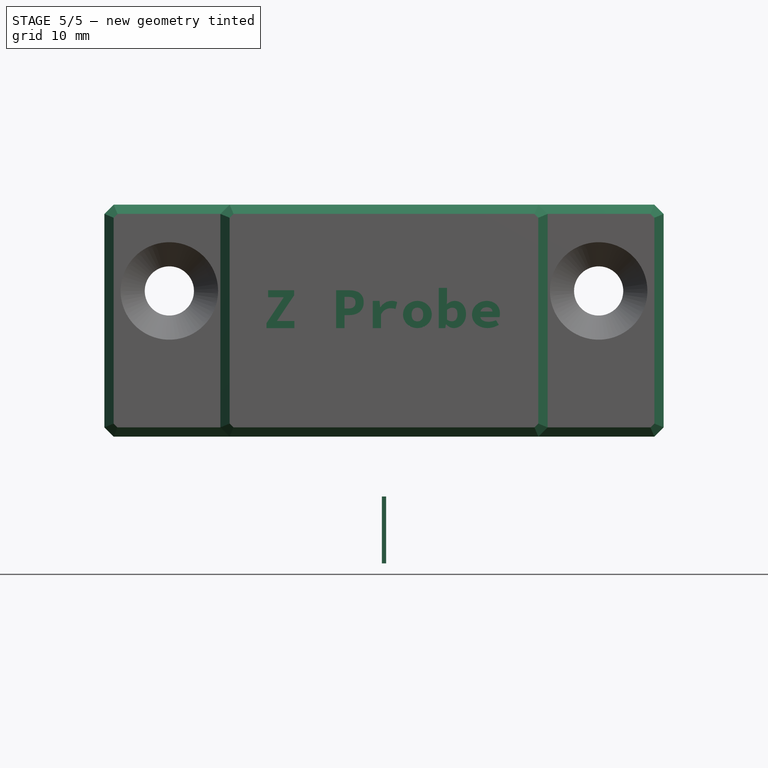
[diagram: stage 5 of 5 — front view after this stage's code; geometry added in this stage tinted green]
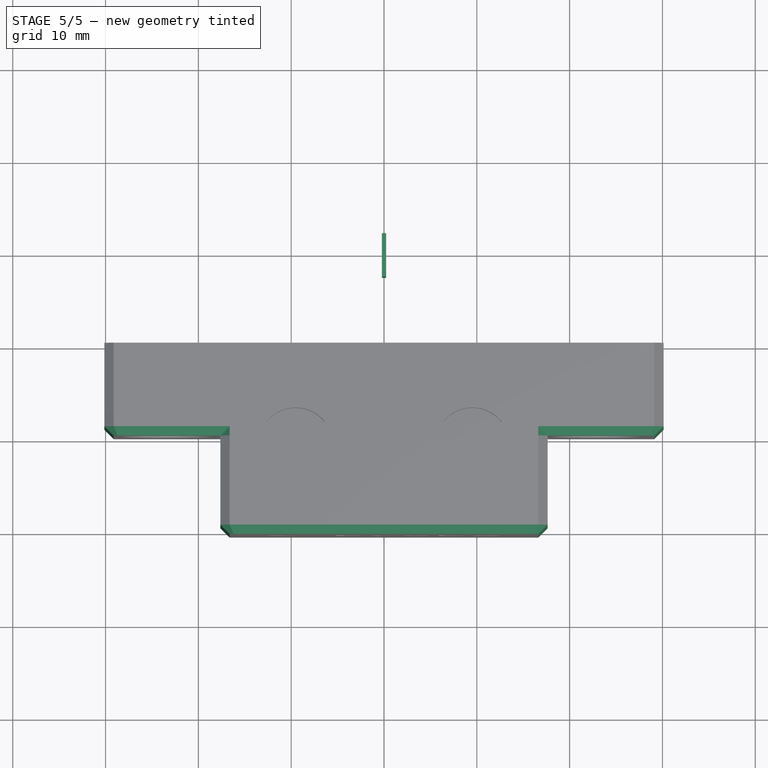
[diagram: stage 5 of 5 — top view after this stage's code; geometry added in this stage tinted green]
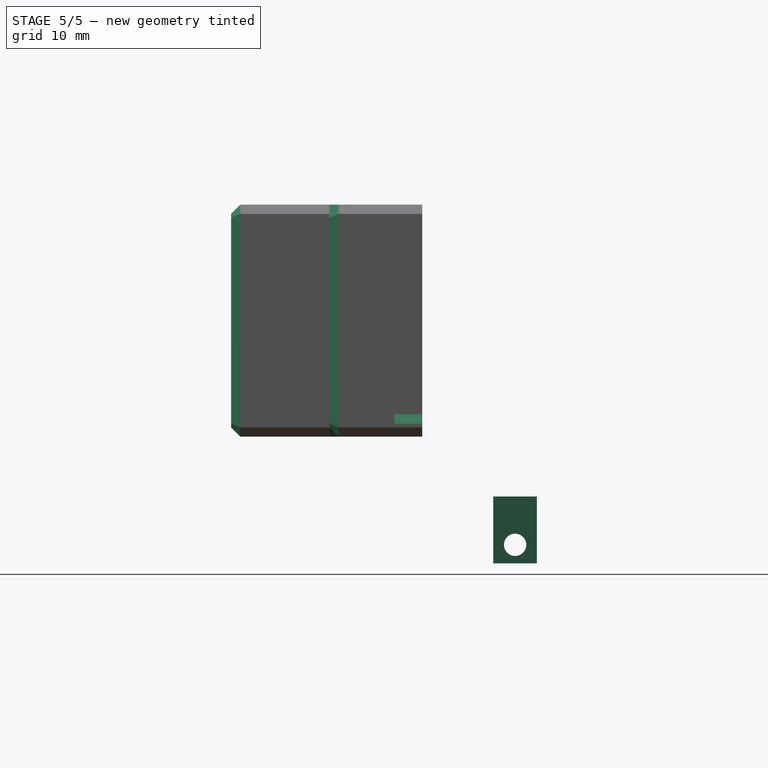
[diagram: stage 5 of 5 — right view after this stage's code; geometry added in this stage tinted green]
FEATURE [PartDesign::Body] Body001  label="red_body"
  Group = -> [Sketch003,Pad001,Sketch004,Pad002,Sketch005,Pocket002,Fillet,Chamfer,Sketch006,Pocket003,Mirrored]
  Origin = -> Origin003
  Tip = -> Mirrored
FEATURE [PartDesign::ShapeBinder] ShapeBinder
  Support = -> [Mirrored]
  TraceSupport = true
FEATURE [Sketcher::SketchObject] Sketch007
  MapMode = 5
  Placement = pos=(0,0,-12.15) rot=(1,0,0;3.14159rad)
  Support = -> [ShapeBinder]
  sketch-geometry (4):
    g0: LineSegment StartX=-0.225 StartY=2.35 StartZ=0 EndX=0.225 EndY=2.35 EndZ=0
    g1: LineSegment StartX=0.225 StartY=2.35 StartZ=0 EndX=0.225 EndY=-2.35 EndZ=0
    g2: LineSegment StartX=0.225 StartY=-2.35 StartZ=0 EndX=-0.225 EndY=-2.35 EndZ=0
    g3: LineSegment StartX=-0.225 StartY=-2.35 StartZ=0 EndX=-0.225 EndY=2.35 EndZ=0
  constraints (10):
    c: Coincident(g0,g1)
    c: Coincident(g1,g2)
    c: Coincident(g2,g3)
    c: Coincident(g3,g0)
    c: Horizontal(g2)
    c: Vertical(g3)
    c: Symmetric(g0,g1,g-1)
    c: Symmetric(g0,g0,g-2)
    c: DistanceX(g0,g0) = 0.45
    c: DistanceY(g1,g1) = 4.7
FEATURE [PartDesign::Pad] Pad003
  Length = 7.2
  Length2 = 100
  Profile = -> Sketch007
  Refine = true
  Type = 0
FEATURE [Sketcher::SketchObject] Sketch008
  ExternalGeometry = -> [Pad003]
  MapMode = 5
  Placement = pos=(0.225,0,0) rot=(0.57735,0.57735,0.57735;2.0944rad)
  Support = -> [Pad003]
  sketch-geometry (1):
    g0: Circle CenterX=0 CenterY=-17.35 CenterZ=0 NormalX=0 NormalY=0 NormalZ=1 AngleXU=0 Radius=1.2
  constraints (3):
    c: PointOnObject(g0,g-2)
    c: Diameter(g0) = 2.4
    c: DistanceY(g-3,g0) = 2
FEATURE [PartDesign::Pocket] Pocket004
  BaseFeature = -> Pad003
  Length = 5
  Length2 = 100
  Profile = -> Sketch008
  Refine = true
  Type = 1
FEATURE [PartDesign::Body] Body003  label="black_body"
  Group = -> [Clone]
  Origin = -> Origin007
  Tip = -> Clone
FEATURE [PartDesign::FeatureBase] Clone001
  BaseFeature = -> Body002
FEATURE [PartDesign::Chamfer] Chamfer003
  Base = -> Chamfer002 [Edge6,Edge34,Edge36,Edge35,Edge33,Edge41,Edge43,Edge44,Edge42,Edge7]
  BaseFeature = -> Chamfer002
  Placement = pos=(-9.525,-21,19.3) rot=(0,0,1;0rad)
  Size = 1
FEATURE [PartDesign::Chamfer] Chamfer004
  Base = -> Chamfer003 [Edge55,Edge56,Edge54,Edge52,Edge46,Edge10,Edge51,Edge53]
  BaseFeature = -> Chamfer003
  Placement = pos=(-9.525,-21,19.3) rot=(0,0,1;0rad)
  Size = 1
FEATURE [PartDesign::Chamfer] Chamfer005
  Base = -> Chamfer004 [Edge127,Edge122]
  BaseFeature = -> Chamfer004
  Placement = pos=(-9.525,-21,19.3) rot=(0,0,1;0rad)
  Size = 1
FEATURE [Part::Part2DObjectPython] ShapeString  # Draft 2D object (typed FeaturePython)
  FontFile = <path>
  Placement = pos=(-13,-30.6,6) rot=(1,0,0;1.5708rad)
  Size = 2.5
  String = Z Probe
  Support = -> [Chamfer005]
  Tracking = 0
FEATURE [PartDesign::Pocket] Pocket013
  BaseFeature = -> Chamfer005
  Length = 0.4
  Length2 = 100
  Placement = pos=(-9.525,-21,19.3) rot=(0,0,1;0rad)
  Profile = -> ShapeString
  Refine = true
  Type = 0
FEATURE [PartDesign::Body] Body005  label="z_probe_body"
  Group = -> [ShapeBinder001,ShapeBinder002,ShapeBinder003,Sketch,Pad,Sketch014,Pocket,Mirrored004,Sketch015,Hole,Sketch016,Pocket009,Mirrored005,Sketch017,Pocket010,Sketch018,Pocket011,Sketch019,Pocket012,Mirrored006,Chamfer001,Chamfer002,Chamfer003,Chamfer004,Chamfer005,ShapeString,Pocket013]
  Origin = -> Origin010
  Tip = -> Pocket013
FEATURE [App::Part] Part004  label="connector mount"
  Group = -> [Body005]
  Origin = -> Origin009
note: 1 file-system path scrubbed to <path> (originals preserved in the JSON sidecar)
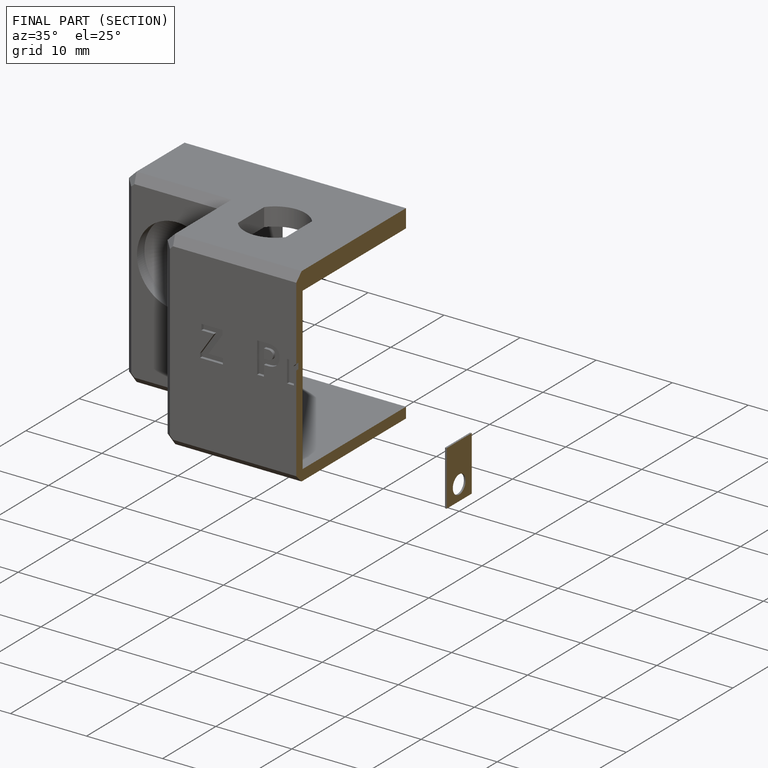
[diagram: finished part — half-section view (interior)]
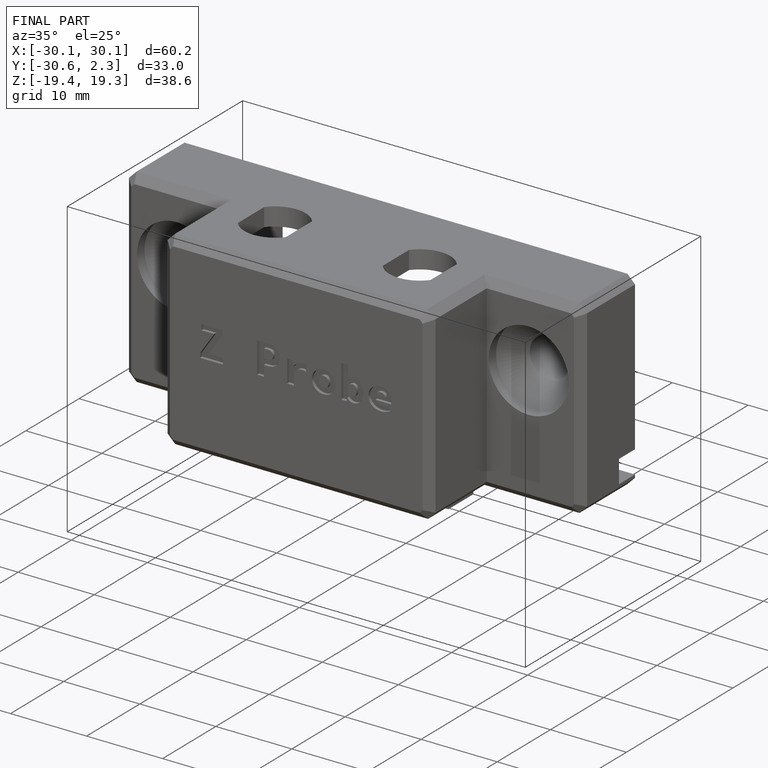
[diagram: finished part — iso view with bounding-box wireframe]
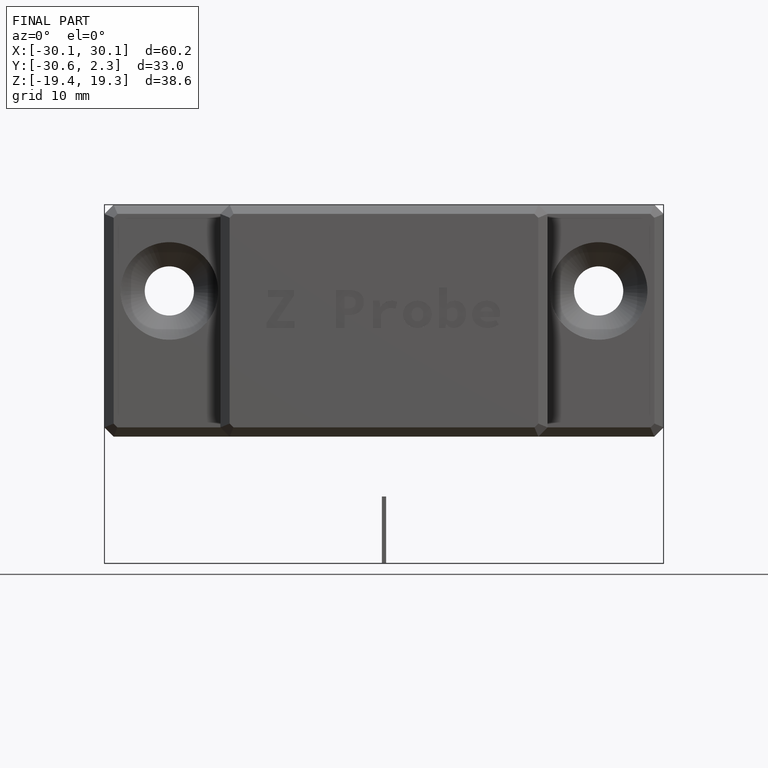
[diagram: finished part — front view with bounding-box wireframe]
